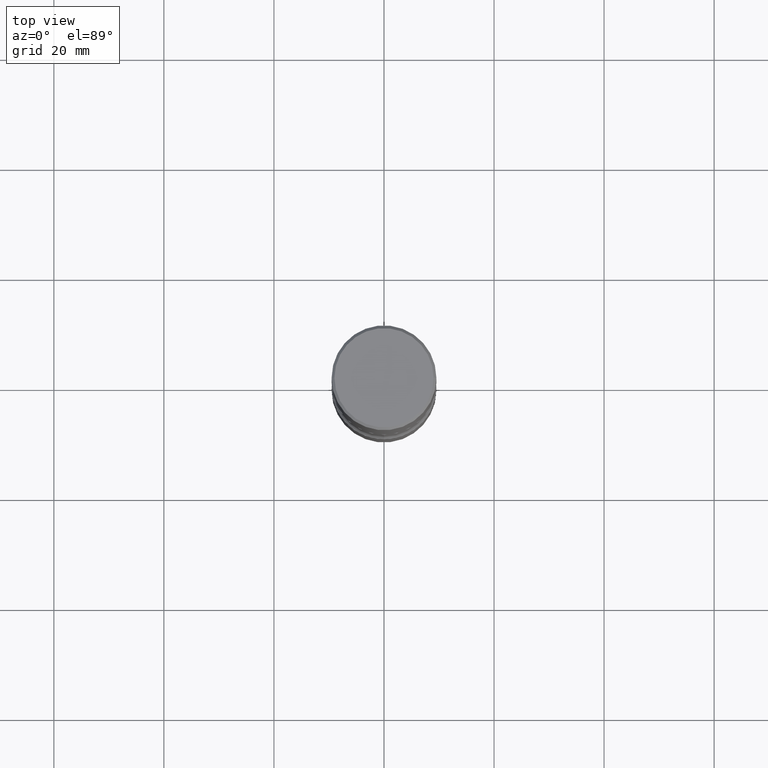
[diagram: clean part render]
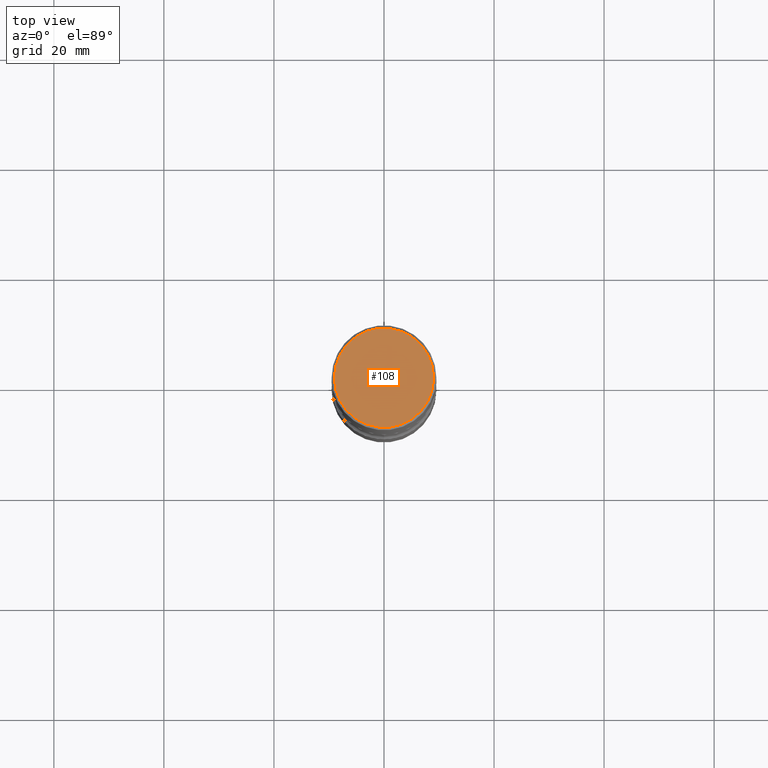
[diagram: same view with one face highlighted and labeled with its STEP entity id]
A machine part, top view. The second image highlights one B-rep face of the part: STEP entity #108.
In plain terms, the highlighted planar face has unit normal (0, -0, -1).
Its self-contained STEP definition (entity closure, byte-faithful):
#9 = DIRECTION ( 'NONE',  ( -1.000000000000000000, 6.982962677686265922E-15, -4.876176775795935793E-29 ) ) ;
#17 = ORIENTED_EDGE ( 'NONE', *, *, #266, .T. ) ;
#40 = AXIS2_PLACEMENT_3D ( 'NONE', #459, #71, #198 ) ;
#59 = EDGE_LOOP ( 'NONE', ( #17, #329 ) ) ;
#71 = DIRECTION ( 'NONE',  ( -2.445468806185136597E-29, 3.491481338843145583E-15, 1.000000000000000000 ) ) ;
#83 = DIRECTION ( 'NONE',  ( 1.000000000000000000, -6.982962677686266711E-15, 4.876231632511985941E-29 ) ) ;
#108 = ADVANCED_FACE ( 'NONE', ( #189 ), #456, .F. ) ;
#126 = AXIS2_PLACEMENT_3D ( 'NONE', #237, #415, #9 ) ;
#129 = DIRECTION ( 'NONE',  ( -2.445468806185136597E-29, 3.491481338843145583E-15, 1.000000000000000000 ) ) ;
#189 = FACE_OUTER_BOUND ( 'NONE', #59, .T. ) ;
#198 = DIRECTION ( 'NONE',  ( 1.000000000000000000, -6.982962677686266711E-15, 4.876231632511985941E-29 ) ) ;
#237 = CARTESIAN_POINT ( 'NONE',  ( 2.478951750578625787E-15, 0.3550000000000001488, -1.237341619044267019E-15 ) ) ;
#266 = EDGE_CURVE ( 'NONE', #352, #276, #474, .T. ) ;
#276 = VERTEX_POINT ( 'NONE', #502 ) ;
#329 = ORIENTED_EDGE ( 'NONE', *, *, #470, .T. ) ;
#352 = VERTEX_POINT ( 'NONE', #420 ) ;
#415 = DIRECTION ( 'NONE',  ( 2.438088387897960049E-29, -3.491481338843145188E-15, -1.000000000000000000 ) ) ;
#420 = CARTESIAN_POINT ( 'NONE',  ( -0.3550000000000001488, 2.513866563967057041E-15, 4.268512490082953109E-18 ) ) ;
#431 = CIRCLE ( 'NONE', #491, 0.3550000000000001488 ) ;
#456 = PLANE ( 'NONE',  #126 ) ;
#459 = CARTESIAN_POINT ( 'NONE',  ( -1.043851414335219820E-46, 1.490343170380447200E-32, 4.268512490100411279E-18 ) ) ;
#470 = EDGE_CURVE ( 'NONE', #276, #352, #431, .T. ) ;
#474 = CIRCLE ( 'NONE', #40, 0.3550000000000001488 ) ;
#491 = AXIS2_PLACEMENT_3D ( 'NONE', #515, #129, #83 ) ;
#502 = CARTESIAN_POINT ( 'NONE',  ( 0.3550000000000001488, -2.538996582575041837E-15, 4.268512490117958041E-18 ) ) ;
#515 = CARTESIAN_POINT ( 'NONE',  ( -1.043851414335219820E-46, 1.490343170380447200E-32, 4.268512490100411279E-18 ) ) ;